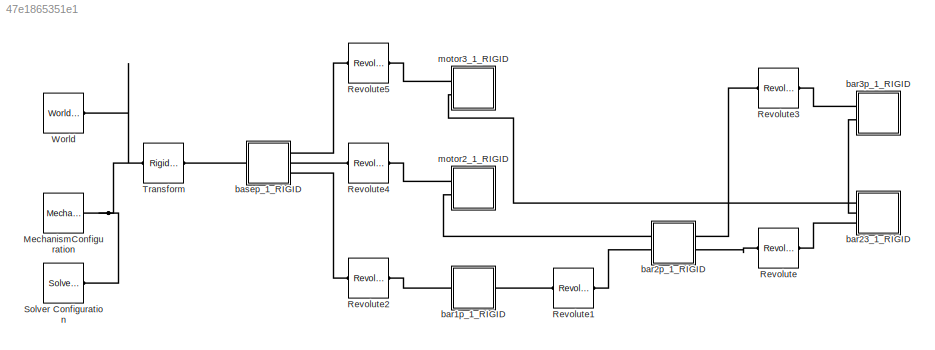
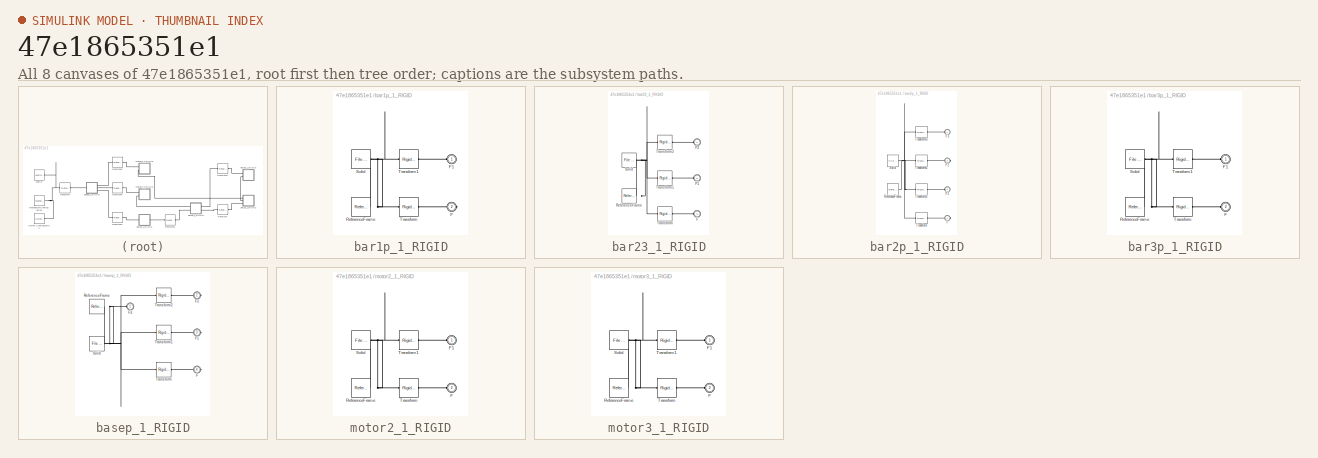
[diagram: thumbnail index - all 8 canvases of the model, root first then tree order]
MODEL slx_47e1865351e1
KIND model
CONFIG AbsTol = auto
CONFIG EnableMultiTasking = off
CONFIG FixedStep = auto
CONFIG MaxStep = auto
CONFIG MinStep = auto
CONFIG RelTol = 1e-3
CONFIG SampleTimeConstraint = Unconstrained
CONFIG SolverName = VariableStepAuto
CONFIG StartTime = 0.0
CONFIG StopTime = 10.0
WORKSPACE source: external: MATLAB File  (data not in archive)
BLOCK [Reference] MechanismConfiguration  REF=sm_lib/Utilities/Mechanism
Configuration
  Ports = [0, 0, 0, 0, 0, 0, 1]
  SourceBlock = sm_lib/Utilities/Mechanism\nConfiguration
  SourceProductBaseCode = MS
  SourceType = Mechanism\nConfiguration
BLOCK [Reference] Revolute  REF=sm_lib/Joints/Revolute Joint
  Ports = [0, 0, 0, 0, 0, 1, 1]
  SourceBlock = sm_lib/Joints/Revolute Joint
  SourceProductBaseCode = MS
  SourceType = Revolute Joint
BLOCK [Reference] Revolute1  REF=sm_lib/Joints/Revolute Joint
  Ports = [0, 0, 0, 0, 0, 1, 1]
  SourceBlock = sm_lib/Joints/Revolute Joint
  SourceProductBaseCode = MS
  SourceType = Revolute Joint
BLOCK [Reference] Revolute2  REF=sm_lib/Joints/Revolute Joint
  Ports = [0, 0, 0, 0, 0, 1, 1]
  SourceBlock = sm_lib/Joints/Revolute Joint
  SourceProductBaseCode = MS
  SourceType = Revolute Joint
BLOCK [Reference] Revolute3  REF=sm_lib/Joints/Revolute Joint
  Ports = [0, 0, 0, 0, 0, 1, 1]
  SourceBlock = sm_lib/Joints/Revolute Joint
  SourceProductBaseCode = MS
  SourceType = Revolute Joint
BLOCK [Reference] Revolute4  REF=sm_lib/Joints/Revolute Joint
  Ports = [0, 0, 0, 0, 0, 1, 1]
  SourceBlock = sm_lib/Joints/Revolute Joint
  SourceProductBaseCode = MS
  SourceType = Revolute Joint
BLOCK [Reference] Revolute5  REF=sm_lib/Joints/Revolute Joint
  Ports = [0, 0, 0, 0, 0, 1, 1]
  SourceBlock = sm_lib/Joints/Revolute Joint
  SourceProductBaseCode = MS
  SourceType = Revolute Joint
BLOCK [Reference] Solver Configuration  REF=nesl_utility/Solver
Configuration
  Ports = [0, 0, 0, 0, 0, 0, 1]
  SourceBlock = nesl_utility/Solver\nConfiguration
  SourceProductBaseCode = SS
  SourceType = Solver\nConfiguration
BLOCK [Reference] Transform  REF=sm_lib/Frames and
Transforms/Rigid
Transform
  Ports = [0, 0, 0, 0, 0, 1, 1]
  SourceBlock = sm_lib/Frames and\nTransforms/Rigid\nTransform
  SourceProductBaseCode = MS
  SourceType = Rigid\nTransform
BLOCK [Reference] World  REF=sm_lib/Frames and
Transforms/World Frame
  Ports = [0, 0, 0, 0, 0, 0, 1]
  SourceBlock = sm_lib/Frames and\nTransforms/World Frame
  SourceProductBaseCode = MS
  SourceType = World Frame
BLOCK [SubSystem] bar1p_1_RIGID
  Ports = [0, 0, 0, 0, 0, 1, 1]
  RequestExecContextInheritance = off
BLOCK [PMIOPort] bar1p_1_RIGID/F
  Port = 2
  Side = Right
BLOCK [PMIOPort] bar1p_1_RIGID/F1
  Side = Left
BLOCK [Reference] bar1p_1_RIGID/ReferenceFrame  REF=sm_lib/Frames and
Transforms/Reference
Frame
  Ports = [0, 0, 0, 0, 0, 0, 1]
  SourceBlock = sm_lib/Frames and\nTransforms/Reference\nFrame
  SourceProductBaseCode = MS
  SourceType = Reference\nFrame
BLOCK [Reference] bar1p_1_RIGID/Solid  REF=sm_lib/Body Elements/File Solid
  Ports = [0, 0, 0, 0, 0, 0, 1]
  SourceBlock = sm_lib/Body Elements/File Solid
  SourceProductBaseCode = MS
  SourceType = File Solid
BLOCK [Reference] bar1p_1_RIGID/Transform  REF=sm_lib/Frames and
Transforms/Rigid
Transform
  Ports = [0, 0, 0, 0, 0, 1, 1]
  SourceBlock = sm_lib/Frames and\nTransforms/Rigid\nTransform
  SourceProductBaseCode = MS
  SourceType = Rigid\nTransform
BLOCK [Reference] bar1p_1_RIGID/Transform1  REF=sm_lib/Frames and
Transforms/Rigid
Transform
  Ports = [0, 0, 0, 0, 0, 1, 1]
  SourceBlock = sm_lib/Frames and\nTransforms/Rigid\nTransform
  SourceProductBaseCode = MS
  SourceType = Rigid\nTransform
BLOCK [SubSystem] bar23_1_RIGID
  Ports = [0, 0, 0, 0, 0, 3]
  RequestExecContextInheritance = off
BLOCK [PMIOPort] bar23_1_RIGID/F
  Port = 3
  Side = Left
BLOCK [PMIOPort] bar23_1_RIGID/F1
  Port = 2
  Side = Left
BLOCK [PMIOPort] bar23_1_RIGID/F2
  Side = Left
BLOCK [Reference] bar23_1_RIGID/ReferenceFrame  REF=sm_lib/Frames and
Transforms/Reference
Frame
  Ports = [0, 0, 0, 0, 0, 0, 1]
  SourceBlock = sm_lib/Frames and\nTransforms/Reference\nFrame
  SourceProductBaseCode = MS
  SourceType = Reference\nFrame
BLOCK [Reference] bar23_1_RIGID/Solid  REF=sm_lib/Body Elements/File Solid
  Ports = [0, 0, 0, 0, 0, 0, 1]
  SourceBlock = sm_lib/Body Elements/File Solid
  SourceProductBaseCode = MS
  SourceType = File Solid
BLOCK [Reference] bar23_1_RIGID/Transform  REF=sm_lib/Frames and
Transforms/Rigid
Transform
  Ports = [0, 0, 0, 0, 0, 1, 1]
  SourceBlock = sm_lib/Frames and\nTransforms/Rigid\nTransform
  SourceProductBaseCode = MS
  SourceType = Rigid\nTransform
BLOCK [Reference] bar23_1_RIGID/Transform1  REF=sm_lib/Frames and
Transforms/Rigid
Transform
  Ports = [0, 0, 0, 0, 0, 1, 1]
  SourceBlock = sm_lib/Frames and\nTransforms/Rigid\nTransform
  SourceProductBaseCode = MS
  SourceType = Rigid\nTransform
BLOCK [Reference] bar23_1_RIGID/Transform2  REF=sm_lib/Frames and
Transforms/Rigid
Transform
  Ports = [0, 0, 0, 0, 0, 1, 1]
  SourceBlock = sm_lib/Frames and\nTransforms/Rigid\nTransform
  SourceProductBaseCode = MS
  SourceType = Rigid\nTransform
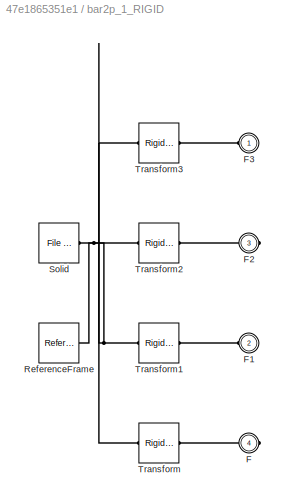
BLOCK [SubSystem] bar2p_1_RIGID
  Ports = [0, 0, 0, 0, 0, 2, 2]
  RequestExecContextInheritance = off
BLOCK [PMIOPort] bar2p_1_RIGID/F
  Port = 4
  Side = Right
BLOCK [PMIOPort] bar2p_1_RIGID/F1
  Port = 2
  Side = Left
BLOCK [PMIOPort] bar2p_1_RIGID/F2
  Port = 3
  Side = Right
BLOCK [PMIOPort] bar2p_1_RIGID/F3
  Side = Left
BLOCK [Reference] bar2p_1_RIGID/ReferenceFrame  REF=sm_lib/Frames and
Transforms/Reference
Frame
  Ports = [0, 0, 0, 0, 0, 0, 1]
  SourceBlock = sm_lib/Frames and\nTransforms/Reference\nFrame
  SourceProductBaseCode = MS
  SourceType = Reference\nFrame
BLOCK [Reference] bar2p_1_RIGID/Solid  REF=sm_lib/Body Elements/File Solid
  Ports = [0, 0, 0, 0, 0, 0, 1]
  SourceBlock = sm_lib/Body Elements/File Solid
  SourceProductBaseCode = MS
  SourceType = File Solid
BLOCK [Reference] bar2p_1_RIGID/Transform  REF=sm_lib/Frames and
Transforms/Rigid
Transform
  Ports = [0, 0, 0, 0, 0, 1, 1]
  SourceBlock = sm_lib/Frames and\nTransforms/Rigid\nTransform
  SourceProductBaseCode = MS
  SourceType = Rigid\nTransform
BLOCK [Reference] bar2p_1_RIGID/Transform1  REF=sm_lib/Frames and
Transforms/Rigid
Transform
  Ports = [0, 0, 0, 0, 0, 1, 1]
  SourceBlock = sm_lib/Frames and\nTransforms/Rigid\nTransform
  SourceProductBaseCode = MS
  SourceType = Rigid\nTransform
BLOCK [Reference] bar2p_1_RIGID/Transform2  REF=sm_lib/Frames and
Transforms/Rigid
Transform
  Ports = [0, 0, 0, 0, 0, 1, 1]
  SourceBlock = sm_lib/Frames and\nTransforms/Rigid\nTransform
  SourceProductBaseCode = MS
  SourceType = Rigid\nTransform
BLOCK [Reference] bar2p_1_RIGID/Transform3  REF=sm_lib/Frames and
Transforms/Rigid
Transform
  Ports = [0, 0, 0, 0, 0, 1, 1]
  SourceBlock = sm_lib/Frames and\nTransforms/Rigid\nTransform
  SourceProductBaseCode = MS
  SourceType = Rigid\nTransform
BLOCK [SubSystem] bar3p_1_RIGID
  Ports = [0, 0, 0, 0, 0, 2]
  RequestExecContextInheritance = off
BLOCK [PMIOPort] bar3p_1_RIGID/F
  Port = 2
  Side = Left
BLOCK [PMIOPort] bar3p_1_RIGID/F1
  Side = Left
BLOCK [Reference] bar3p_1_RIGID/ReferenceFrame  REF=sm_lib/Frames and
Transforms/Reference
Frame
  Ports = [0, 0, 0, 0, 0, 0, 1]
  SourceBlock = sm_lib/Frames and\nTransforms/Reference\nFrame
  SourceProductBaseCode = MS
  SourceType = Reference\nFrame
BLOCK [Reference] bar3p_1_RIGID/Solid  REF=sm_lib/Body Elements/File Solid
  Ports = [0, 0, 0, 0, 0, 0, 1]
  SourceBlock = sm_lib/Body Elements/File Solid
  SourceProductBaseCode = MS
  SourceType = File Solid
BLOCK [Reference] bar3p_1_RIGID/Transform  REF=sm_lib/Frames and
Transforms/Rigid
Transform
  Ports = [0, 0, 0, 0, 0, 1, 1]
  SourceBlock = sm_lib/Frames and\nTransforms/Rigid\nTransform
  SourceProductBaseCode = MS
  SourceType = Rigid\nTransform
BLOCK [Reference] bar3p_1_RIGID/Transform1  REF=sm_lib/Frames and
Transforms/Rigid
Transform
  Ports = [0, 0, 0, 0, 0, 1, 1]
  SourceBlock = sm_lib/Frames and\nTransforms/Rigid\nTransform
  SourceProductBaseCode = MS
  SourceType = Rigid\nTransform
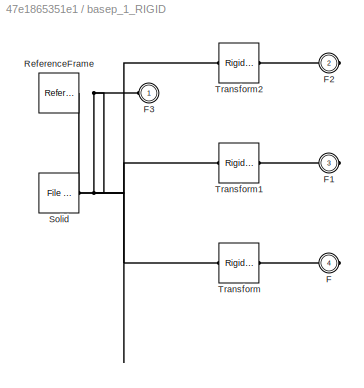
BLOCK [SubSystem] basep_1_RIGID
  Ports = [0, 0, 0, 0, 0, 1, 3]
  RequestExecContextInheritance = off
BLOCK [PMIOPort] basep_1_RIGID/F
  Port = 4
  Side = Right
BLOCK [PMIOPort] basep_1_RIGID/F1
  Port = 3
  Side = Right
BLOCK [PMIOPort] basep_1_RIGID/F2
  Port = 2
  Side = Right
BLOCK [PMIOPort] basep_1_RIGID/F3
  Side = Left
BLOCK [Reference] basep_1_RIGID/ReferenceFrame  REF=sm_lib/Frames and
Transforms/Reference
Frame
  Ports = [0, 0, 0, 0, 0, 0, 1]
  SourceBlock = sm_lib/Frames and\nTransforms/Reference\nFrame
  SourceProductBaseCode = MS
  SourceType = Reference\nFrame
BLOCK [Reference] basep_1_RIGID/Solid  REF=sm_lib/Body Elements/File Solid
  Ports = [0, 0, 0, 0, 0, 0, 1]
  SourceBlock = sm_lib/Body Elements/File Solid
  SourceProductBaseCode = MS
  SourceType = File Solid
BLOCK [Reference] basep_1_RIGID/Transform  REF=sm_lib/Frames and
Transforms/Rigid
Transform
  Ports = [0, 0, 0, 0, 0, 1, 1]
  SourceBlock = sm_lib/Frames and\nTransforms/Rigid\nTransform
  SourceProductBaseCode = MS
  SourceType = Rigid\nTransform
BLOCK [Reference] basep_1_RIGID/Transform1  REF=sm_lib/Frames and
Transforms/Rigid
Transform
  Ports = [0, 0, 0, 0, 0, 1, 1]
  SourceBlock = sm_lib/Frames and\nTransforms/Rigid\nTransform
  SourceProductBaseCode = MS
  SourceType = Rigid\nTransform
BLOCK [Reference] basep_1_RIGID/Transform2  REF=sm_lib/Frames and
Transforms/Rigid
Transform
  Ports = [0, 0, 0, 0, 0, 1, 1]
  SourceBlock = sm_lib/Frames and\nTransforms/Rigid\nTransform
  SourceProductBaseCode = MS
  SourceType = Rigid\nTransform
BLOCK [SubSystem] motor2_1_RIGID
  Ports = [0, 0, 0, 0, 0, 2]
  RequestExecContextInheritance = off
BLOCK [PMIOPort] motor2_1_RIGID/F
  Port = 2
  Side = Left
BLOCK [PMIOPort] motor2_1_RIGID/F1
  Side = Left
BLOCK [Reference] motor2_1_RIGID/ReferenceFrame  REF=sm_lib/Frames and
Transforms/Reference
Frame
  Ports = [0, 0, 0, 0, 0, 0, 1]
  SourceBlock = sm_lib/Frames and\nTransforms/Reference\nFrame
  SourceProductBaseCode = MS
  SourceType = Reference\nFrame
BLOCK [Reference] motor2_1_RIGID/Solid  REF=sm_lib/Body Elements/File Solid
  Ports = [0, 0, 0, 0, 0, 0, 1]
  SourceBlock = sm_lib/Body Elements/File Solid
  SourceProductBaseCode = MS
  SourceType = File Solid
BLOCK [Reference] motor2_1_RIGID/Transform  REF=sm_lib/Frames and
Transforms/Rigid
Transform
  Ports = [0, 0, 0, 0, 0, 1, 1]
  SourceBlock = sm_lib/Frames and\nTransforms/Rigid\nTransform
  SourceProductBaseCode = MS
  SourceType = Rigid\nTransform
BLOCK [Reference] motor2_1_RIGID/Transform1  REF=sm_lib/Frames and
Transforms/Rigid
Transform
  Ports = [0, 0, 0, 0, 0, 1, 1]
  SourceBlock = sm_lib/Frames and\nTransforms/Rigid\nTransform
  SourceProductBaseCode = MS
  SourceType = Rigid\nTransform
BLOCK [SubSystem] motor3_1_RIGID
  Ports = [0, 0, 0, 0, 0, 2]
  RequestExecContextInheritance = off
BLOCK [PMIOPort] motor3_1_RIGID/F
  Port = 2
  Side = Left
BLOCK [PMIOPort] motor3_1_RIGID/F1
  Side = Left
BLOCK [Reference] motor3_1_RIGID/ReferenceFrame  REF=sm_lib/Frames and
Transforms/Reference
Frame
  Ports = [0, 0, 0, 0, 0, 0, 1]
  SourceBlock = sm_lib/Frames and\nTransforms/Reference\nFrame
  SourceProductBaseCode = MS
  SourceType = Reference\nFrame
BLOCK [Reference] motor3_1_RIGID/Solid  REF=sm_lib/Body Elements/File Solid
  Ports = [0, 0, 0, 0, 0, 0, 1]
  SourceBlock = sm_lib/Body Elements/File Solid
  SourceProductBaseCode = MS
  SourceType = File Solid
BLOCK [Reference] motor3_1_RIGID/Transform  REF=sm_lib/Frames and
Transforms/Rigid
Transform
  Ports = [0, 0, 0, 0, 0, 1, 1]
  SourceBlock = sm_lib/Frames and\nTransforms/Rigid\nTransform
  SourceProductBaseCode = MS
  SourceType = Rigid\nTransform
BLOCK [Reference] motor3_1_RIGID/Transform1  REF=sm_lib/Frames and
Transforms/Rigid
Transform
  Ports = [0, 0, 0, 0, 0, 1, 1]
  SourceBlock = sm_lib/Frames and\nTransforms/Rigid\nTransform
  SourceProductBaseCode = MS
  SourceType = Rigid\nTransform
PNET net1: MechanismConfiguration:RConn1 -- Solver Configuration:RConn1 -- Transform:LConn1 -- World:RConn1
PLINE Revolute1:LConn1 -- bar1p_1_RIGID:RConn1
PLINE Revolute1:RConn1 -- bar2p_1_RIGID:LConn2
PLINE Revolute2:LConn1 -- basep_1_RIGID:RConn3
PLINE Revolute2:RConn1 -- bar1p_1_RIGID:LConn1
PLINE Revolute3:LConn1 -- bar2p_1_RIGID:RConn1
PLINE Revolute3:RConn1 -- bar3p_1_RIGID:LConn1
PLINE Revolute4:LConn1 -- basep_1_RIGID:RConn2
PLINE Revolute4:RConn1 -- motor2_1_RIGID:LConn1
PLINE Revolute5:LConn1 -- basep_1_RIGID:RConn1
PLINE Revolute5:RConn1 -- motor3_1_RIGID:LConn1
PLINE Revolute:LConn1 -- bar2p_1_RIGID:RConn2
PLINE Revolute:RConn1 -- bar23_1_RIGID:LConn3
PLINE Transform:RConn1 -- basep_1_RIGID:LConn1
PLINE bar1p_1_RIGID/F1:RConn1 -- bar1p_1_RIGID/Transform1:RConn1
PLINE bar1p_1_RIGID/F:RConn1 -- bar1p_1_RIGID/Transform:RConn1
PNET net2: bar1p_1_RIGID/ReferenceFrame:RConn1 -- bar1p_1_RIGID/Solid:RConn1 -- bar1p_1_RIGID/Transform1:LConn1 -- bar1p_1_RIGID/Transform:LConn1
PLINE bar23_1_RIGID/F1:RConn1 -- bar23_1_RIGID/Transform1:RConn1
PLINE bar23_1_RIGID/F2:RConn1 -- bar23_1_RIGID/Transform2:RConn1
PLINE bar23_1_RIGID/F:RConn1 -- bar23_1_RIGID/Transform:RConn1
PNET net3: bar23_1_RIGID/ReferenceFrame:RConn1 -- bar23_1_RIGID/Solid:RConn1 -- bar23_1_RIGID/Transform1:LConn1 -- bar23_1_RIGID/Transform2:LConn1 -- bar23_1_RIGID/Transform:LConn1
PLINE bar23_1_RIGID:LConn1 -- motor3_1_RIGID:LConn2
PLINE bar23_1_RIGID:LConn2 -- bar3p_1_RIGID:LConn2
PLINE bar2p_1_RIGID/F1:RConn1 -- bar2p_1_RIGID/Transform1:RConn1
PLINE bar2p_1_RIGID/F2:RConn1 -- bar2p_1_RIGID/Transform2:RConn1
PLINE bar2p_1_RIGID/F3:RConn1 -- bar2p_1_RIGID/Transform3:RConn1
PLINE bar2p_1_RIGID/F:RConn1 -- bar2p_1_RIGID/Transform:RConn1
PNET net4: bar2p_1_RIGID/ReferenceFrame:RConn1 -- bar2p_1_RIGID/Solid:RConn1 -- bar2p_1_RIGID/Transform1:LConn1 -- bar2p_1_RIGID/Transform2:LConn1 -- bar2p_1_RIGID/Transform3:LConn1 -- bar2p_1_RIGID/Transform:LConn1
PLINE bar2p_1_RIGID:LConn1 -- motor2_1_RIGID:LConn2
PLINE bar3p_1_RIGID/F1:RConn1 -- bar3p_1_RIGID/Transform1:RConn1
PLINE bar3p_1_RIGID/F:RConn1 -- bar3p_1_RIGID/Transform:RConn1
PNET net5: bar3p_1_RIGID/ReferenceFrame:RConn1 -- bar3p_1_RIGID/Solid:RConn1 -- bar3p_1_RIGID/Transform1:LConn1 -- bar3p_1_RIGID/Transform:LConn1
PLINE basep_1_RIGID/F1:RConn1 -- basep_1_RIGID/Transform1:RConn1
PLINE basep_1_RIGID/F2:RConn1 -- basep_1_RIGID/Transform2:RConn1
PNET net6: basep_1_RIGID/F3:RConn1 -- basep_1_RIGID/ReferenceFrame:RConn1 -- basep_1_RIGID/Solid:RConn1 -- basep_1_RIGID/Transform1:LConn1 -- basep_1_RIGID/Transform2:LConn1 -- basep_1_RIGID/Transform:LConn1
PLINE basep_1_RIGID/F:RConn1 -- basep_1_RIGID/Transform:RConn1
PLINE motor2_1_RIGID/F1:RConn1 -- motor2_1_RIGID/Transform1:RConn1
PLINE motor2_1_RIGID/F:RConn1 -- motor2_1_RIGID/Transform:RConn1
PNET net7: motor2_1_RIGID/ReferenceFrame:RConn1 -- motor2_1_RIGID/Solid:RConn1 -- motor2_1_RIGID/Transform1:LConn1 -- motor2_1_RIGID/Transform:LConn1
PLINE motor3_1_RIGID/F1:RConn1 -- motor3_1_RIGID/Transform1:RConn1
PLINE motor3_1_RIGID/F:RConn1 -- motor3_1_RIGID/Transform:RConn1
PNET net8: motor3_1_RIGID/ReferenceFrame:RConn1 -- motor3_1_RIGID/Solid:RConn1 -- motor3_1_RIGID/Transform1:LConn1 -- motor3_1_RIGID/Transform:LConn1
note: PNET lines group multi-terminal physical nets as a canonical sorted terminal list (undirected conserving connections); 2-terminal nets keep the pairwise PLINE form
